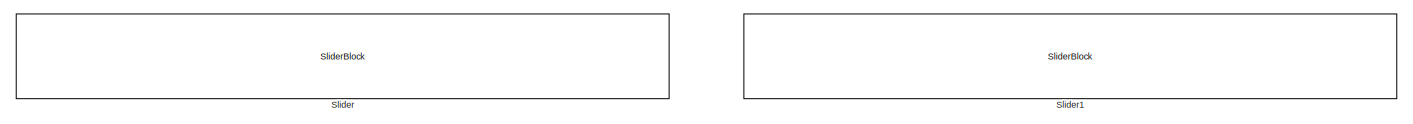
[diagram: root canvas - part 1/3, full width, top band]
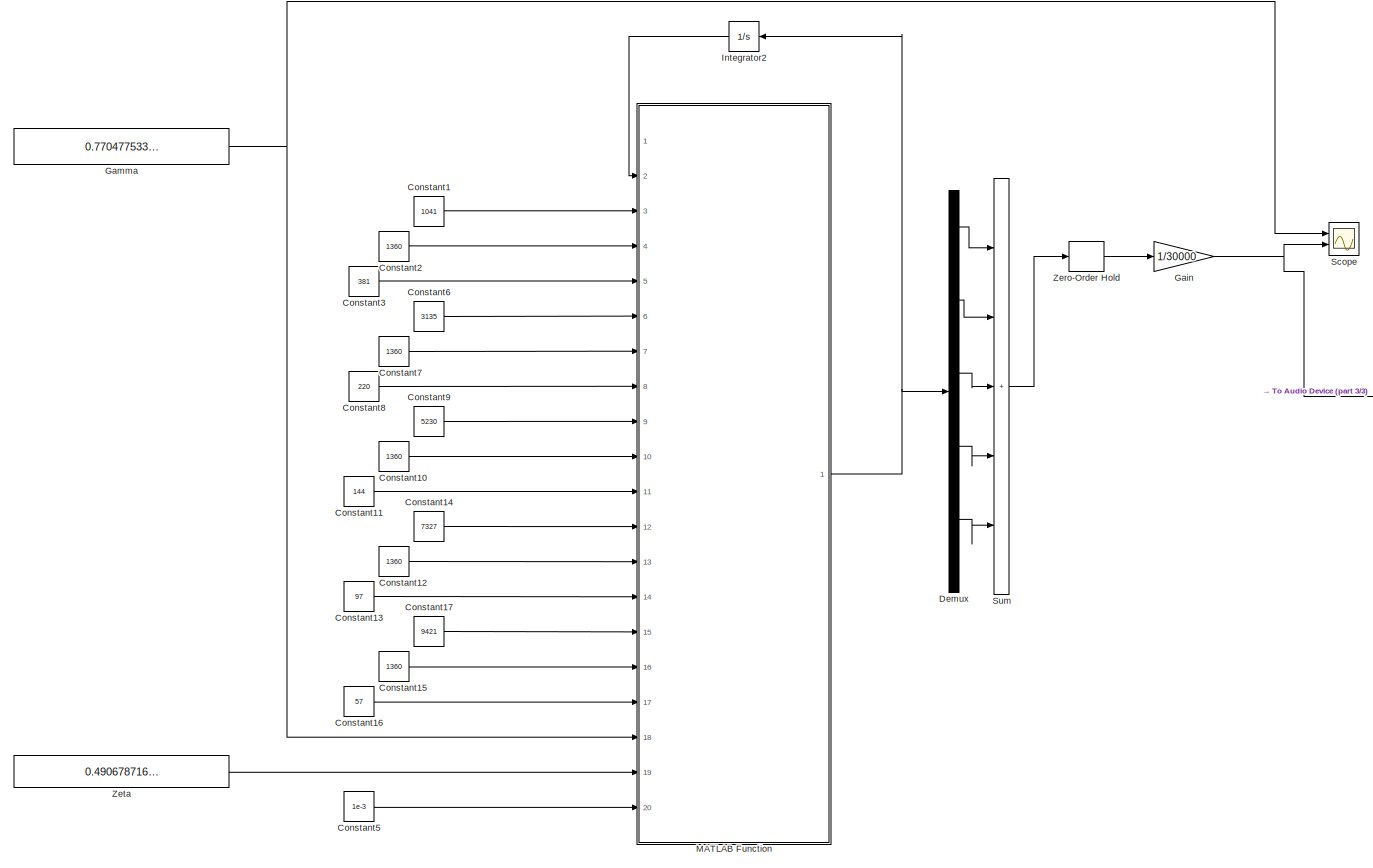
[diagram: root canvas - part 2/3, most of the canvas]
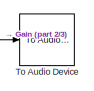
[diagram: root canvas - part 3/3, middle right region]
MODEL slx_fd84049beca9
KIND model
CONFIG AbsTol = auto
CONFIG EnableMultiTasking = off
CONFIG FixedStep = auto
CONFIG MaxStep = auto
CONFIG MinStep = auto
CONFIG RelTol = 1e-3
CONFIG SampleTimeConstraint = Unconstrained
CONFIG Solver = VariableStepAuto
CONFIG SolverName = VariableStepAuto
CONFIG StartTime = 0.0
CONFIG StopTime = Inf
BLOCK [Constant] Constant1
  Value = 1041
BLOCK [Constant] Constant10
  Value = 1360
BLOCK [Constant] Constant11
  Value = 144
BLOCK [Constant] Constant12
  Value = 1360
BLOCK [Constant] Constant13
  Value = 97
BLOCK [Constant] Constant14
  Value = 7327
BLOCK [Constant] Constant15
  Value = 1360
BLOCK [Constant] Constant16
  Value = 57
BLOCK [Constant] Constant17
  Value = 9421
BLOCK [Constant] Constant2
  Value = 1360
BLOCK [Constant] Constant3
  Value = 381
BLOCK [Constant] Constant5
  Value = 1e-3
BLOCK [Constant] Constant6
  Value = 3135
BLOCK [Constant] Constant7
  Value = 1360
BLOCK [Constant] Constant8
  Value = 220
BLOCK [Constant] Constant9
  Value = 5230
BLOCK [Demux] Demux
  Outputs = 10
  Ports = [1, 10]
BLOCK [Gain] Gain
  Gain = 1/30000
BLOCK [Constant] Gamma
  Value = 0.7704775332840237
BLOCK [Integrator] Integrator2
  InitialCondition = [0.01,0,0.01,0,0.01,0,0.01,0,0.01,0]
  Ports = [1, 1]
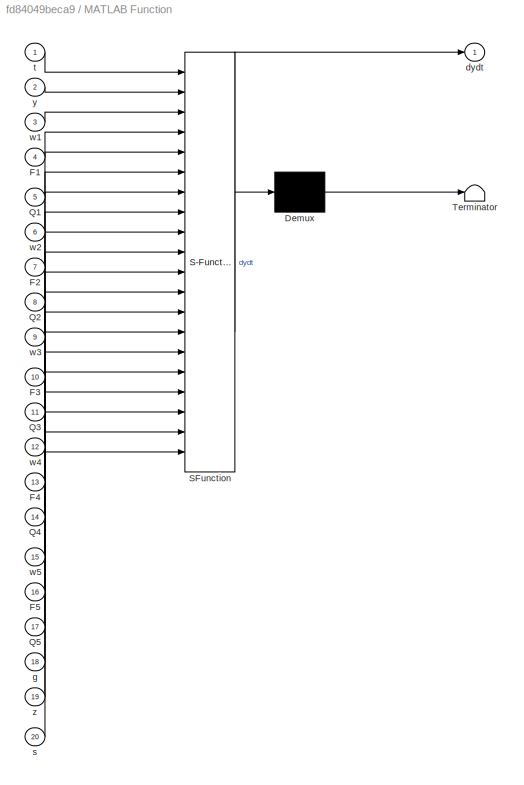
BLOCK [SubSystem] MATLAB Function
  ErrorFcn = Stateflow.Translate.translate
  PermitHierarchicalResolution = ExplicitOnly
  Ports = [20, 1]
  RequestExecContextInheritance = off
  SFBlockType = MATLAB Function
  TreatAsAtomicUnit = on
BLOCK [Demux] MATLAB Function/ Demux 
  Outputs = 1
  Ports = [1, 1]
BLOCK [S-Function] MATLAB Function/ SFunction 
  EnableBusSupport = on
  FunctionName = sf_sfun
  PortCounts = [20 2]
  Ports = [20, 2]
  SFcnIsStateOwnerBlock = off
  SFunctionDeploymentMode = off
  Tag = Stateflow S-Function 2
BLOCK [Terminator] MATLAB Function/ Terminator 
BLOCK [Inport] MATLAB Function/F1
  Port = 4
BLOCK [Inport] MATLAB Function/F2
  Port = 7
BLOCK [Inport] MATLAB Function/F3
  Port = 10
BLOCK [Inport] MATLAB Function/F4
  Port = 13
BLOCK [Inport] MATLAB Function/F5
  Port = 16
BLOCK [Inport] MATLAB Function/Q1
  Port = 5
BLOCK [Inport] MATLAB Function/Q2
  Port = 8
BLOCK [Inport] MATLAB Function/Q3
  Port = 11
BLOCK [Inport] MATLAB Function/Q4
  Port = 14
BLOCK [Inport] MATLAB Function/Q5
  Port = 17
BLOCK [Outport] MATLAB Function/dydt
BLOCK [Inport] MATLAB Function/g
  Port = 18
BLOCK [Inport] MATLAB Function/s
  Port = 20
BLOCK [Inport] MATLAB Function/t
BLOCK [Inport] MATLAB Function/w1
  Port = 3
BLOCK [Inport] MATLAB Function/w2
  Port = 6
BLOCK [Inport] MATLAB Function/w3
  Port = 9
BLOCK [Inport] MATLAB Function/w4
  Port = 12
BLOCK [Inport] MATLAB Function/w5
  Port = 15
BLOCK [Inport] MATLAB Function/y
  Port = 2
BLOCK [Inport] MATLAB Function/z
  Port = 19
BLOCK [Scope] Scope
  Floating = off
  NumInputPorts = 2
  Ports = [2]
  ScopeSpecificationString = Simulink.scopes.TimeScopeBlockCfg('CurrentConfiguration', extmgr.ConfigurationSet(extmgr.Configuration('Core','General UI',true),extmgr.Configuration('Core','Source UI',true),extmgr.Configuration('Sources','WiredSimulink',true),extmgr.Configuration('Visuals','Time Domain',true,'SerializedDisplays',{struct('MinYLimReal','0.7621','MaxYLimReal','0.84585','YLabelReal','','MinYLimMag','0.7621','MaxYLim...<+1996ch>
BLOCK [SliderBlock] Slider
  ScaleMax = 1
  ScaleMin = 0.001
BLOCK [SliderBlock] Slider1
  ScaleMax = 1
  ScaleMin = 0.001
BLOCK [Sum] Sum
  IconShape = rectangular
  Inputs = +++++
  Ports = [5, 1]
BLOCK [Reference] To Audio Device  REF=dspobslib/To Audio
Device
  Ports = [1]
  SourceBlock = dspobslib/To Audio\nDevice
  SourceProductBaseCode = DS
  SourceType = To Audio Device
BLOCK [ZeroOrderHold] Zero-Order Hold
  SampleTime = 1/22050
BLOCK [Constant] Zeta
  Value = 0.4906787167159763
LINE Constant10:1 -> MATLAB Function:10
LINE Constant11:1 -> MATLAB Function:11
LINE Constant12:1 -> MATLAB Function:13
LINE Constant13:1 -> MATLAB Function:14
LINE Constant14:1 -> MATLAB Function:12
LINE Constant15:1 -> MATLAB Function:16
LINE Constant16:1 -> MATLAB Function:17
LINE Constant17:1 -> MATLAB Function:15
LINE Constant1:1 -> MATLAB Function:3
LINE Constant2:1 -> MATLAB Function:4
LINE Constant3:1 -> MATLAB Function:5
LINE Constant5:1 -> MATLAB Function:20
LINE Constant6:1 -> MATLAB Function:6
LINE Constant7:1 -> MATLAB Function:7
LINE Constant8:1 -> MATLAB Function:8
LINE Constant9:1 -> MATLAB Function:9
LINE Demux:1 -> Sum:1
LINE Demux:3 -> Sum:2
LINE Demux:5 -> Sum:3
LINE Demux:7 -> Sum:4
LINE Demux:9 -> Sum:5
NET Gain:1 -> Scope:2, To Audio Device:1
NET Gamma:1 -> MATLAB Function:18, Scope:1
LINE Integrator2:1 -> MATLAB Function:2
NET MATLAB Function:1 -> Demux:1, Integrator2:1
LINE Sum:1 -> Zero-Order Hold:1
LINE Zero-Order Hold:1 -> Gain:1
LINE Zeta:1 -> MATLAB Function:19
note: NET lines group one-source signal fan-out (src -> all destinations, sorted); 1:1 wires keep LINE
CHART MATLAB Function states=1 transitions=1
  STATE_LABEL 'eML_blk_kernel()'
  STATE_LABEL 'SCRIPT:\nfunction dydt = systdyn_5modes(t,y,w1,F1,Q1,w2,F2,Q2,w3,F3,Q3,w4,F4,Q4,w5,F5,Q5,g,z,s)\n\np_tot = y(1) + y(3) + y(5) + y(7) + y(9);\n\nif (g - p_tot) > 1\n    dudt = 0;\n%     fprintf("> 1 \\n");\nelseif (0 <= (g - p_tot)) && ((g - p_tot) <= 1)\n    dudt = (y(2) + y(4) + y(6) + y(8) + y(10))*z*sqrt(g - y(1) - y(3) - y(5) - y(7) - y(9)) + ((-y(2) - y(4) - y(6) - y(8) - y(10))*z*(1 - g + y(1) + y(3) ...<+747ch>'
CHART  states=0 transitions=0
